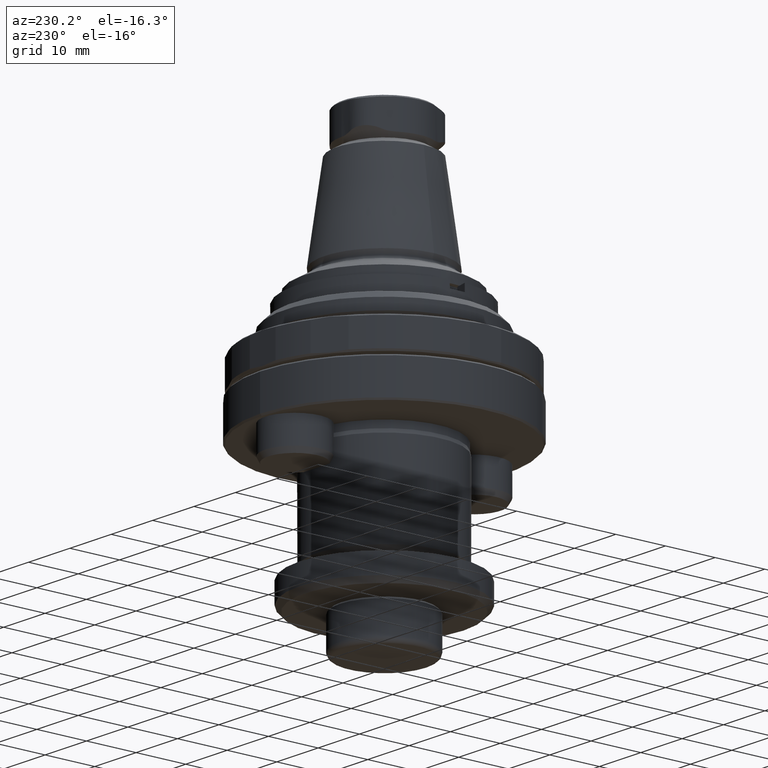
[diagram: clean part render]
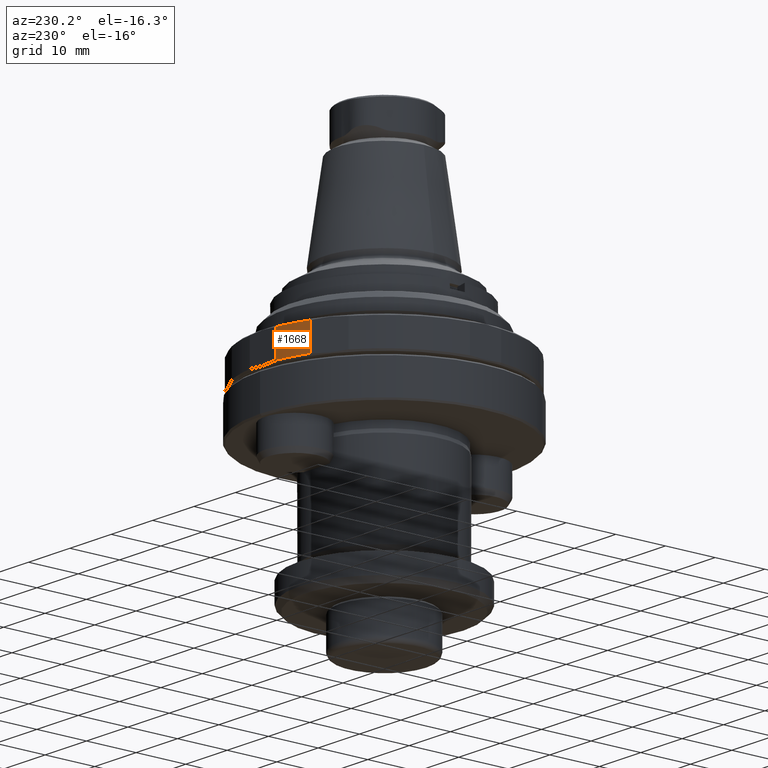
[diagram: same view with one face highlighted and labeled with its STEP entity id]
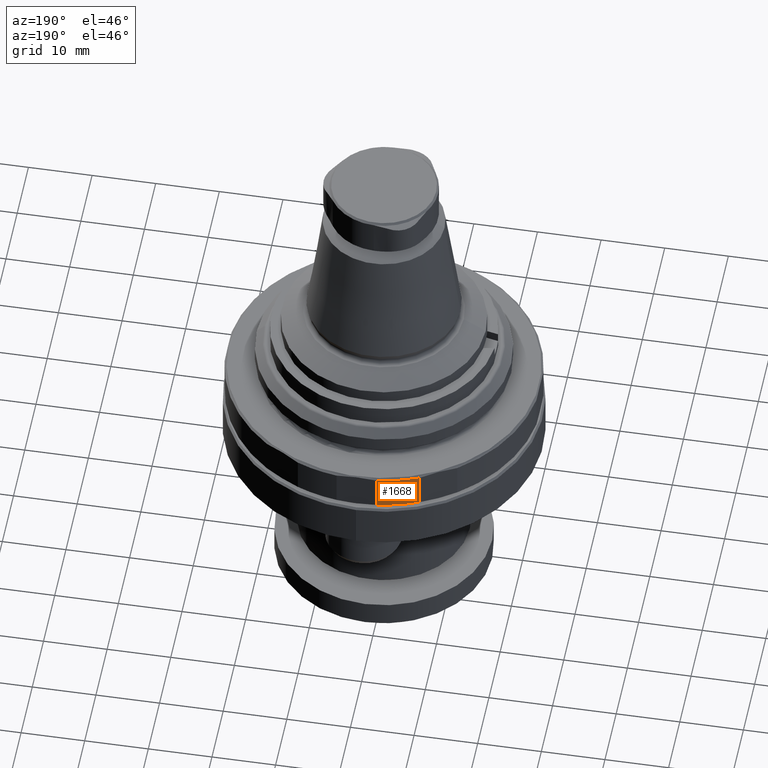
[diagram: same view with one face highlighted and labeled with its STEP entity id]
A machine part, auxiliary view. The second image highlights one B-rep face of the part: STEP entity #1668.
A second angle (auxiliary view) of the same face is appended — the face is thin or edge-on in the first view.
In plain terms, the highlighted cylindrical surface (partial cylindrical patch) has radius 24.7 mm, axis along (-0, -0, -1).
Its self-contained STEP definition (entity closure, byte-faithful):
#104=LINE('',#2920,#178);
#119=LINE('',#3004,#193);
#178=VECTOR('',#2211,1000.);
#193=VECTOR('',#2268,1000.);
#238=CYLINDRICAL_SURFACE('',#1863,24.7);
#625=ORIENTED_EDGE('',*,*,#931,.T.);
#626=ORIENTED_EDGE('',*,*,#975,.T.);
#627=ORIENTED_EDGE('',*,*,#976,.F.);
#628=ORIENTED_EDGE('',*,*,#945,.T.);
#931=EDGE_CURVE('',#1122,#1121,#1231,.T.);
#945=EDGE_CURVE('',#1135,#1122,#104,.F.);
#975=EDGE_CURVE('',#1121,#1150,#119,.T.);
#976=EDGE_CURVE('',#1135,#1150,#1245,.T.);
#1121=VERTEX_POINT('',#2870);
#1122=VERTEX_POINT('',#2872);
#1135=VERTEX_POINT('',#2921);
#1150=VERTEX_POINT('',#3003);
#1231=CIRCLE('',#1834,24.7);
#1245=CIRCLE('',#1864,24.7);
#1370=EDGE_LOOP('',(#625,#626,#627,#628));
#1525=FACE_BOUND('',#1370,.T.);
#1668=ADVANCED_FACE('',(#1525),#238,.T.);
#1834=AXIS2_PLACEMENT_3D('',#2871,#2195,#2196);
#1863=AXIS2_PLACEMENT_3D('',#3005,#2269,#2270);
#1864=AXIS2_PLACEMENT_3D('',#3006,#2271,#2272);
#2195=DIRECTION('',(-2.60563148754756E-18,-2.60563148754756E-18,-1.));
#2196=DIRECTION('',(1.,-6.12303176911189E-17,-2.60563148754756E-18));
#2211=DIRECTION('',(-2.60563148754756E-18,-2.60563148754756E-18,-1.));
#2268=DIRECTION('',(-2.60563148754756E-18,-2.60563148754756E-18,-1.));
#2269=DIRECTION('',(-2.60563148754756E-18,-2.60563148754756E-18,-1.));
#2270=DIRECTION('',(1.,-6.12303176911189E-17,-2.60563148754756E-18));
#2271=DIRECTION('',(-2.60563148754756E-18,-2.60563148754756E-18,-1.));
#2272=DIRECTION('',(1.,-6.12303176911189E-17,-2.60563148754756E-18));
#2870=CARTESIAN_POINT('',(-3.13687742827159,24.5,-1.29999999999987));
#2871=CARTESIAN_POINT('',(1.48683007292747E-17,-2.26689939416635E-17,-1.29999999999987));
#2872=CARTESIAN_POINT('',(-9.53338445855885,22.7860611068545,-1.29999999999987));
#2920=CARTESIAN_POINT('',(-9.53338445855885,22.7860611068545,-1.00000000000001));
#2921=CARTESIAN_POINT('',(-9.53338445855885,22.7860611068545,-6.70000000000001));
#3003=CARTESIAN_POINT('',(-3.13687742827159,24.5,-6.70000000000001));
#3004=CARTESIAN_POINT('',(-3.13687742827159,24.5,-1.00000000000001));
#3005=CARTESIAN_POINT('',(1.56499901755386E-17,-2.18873044953995E-17,-1.00000000000001));
#3006=CARTESIAN_POINT('',(7.97890696517492E-19,-3.67394039744206E-17,-6.70000000000001));